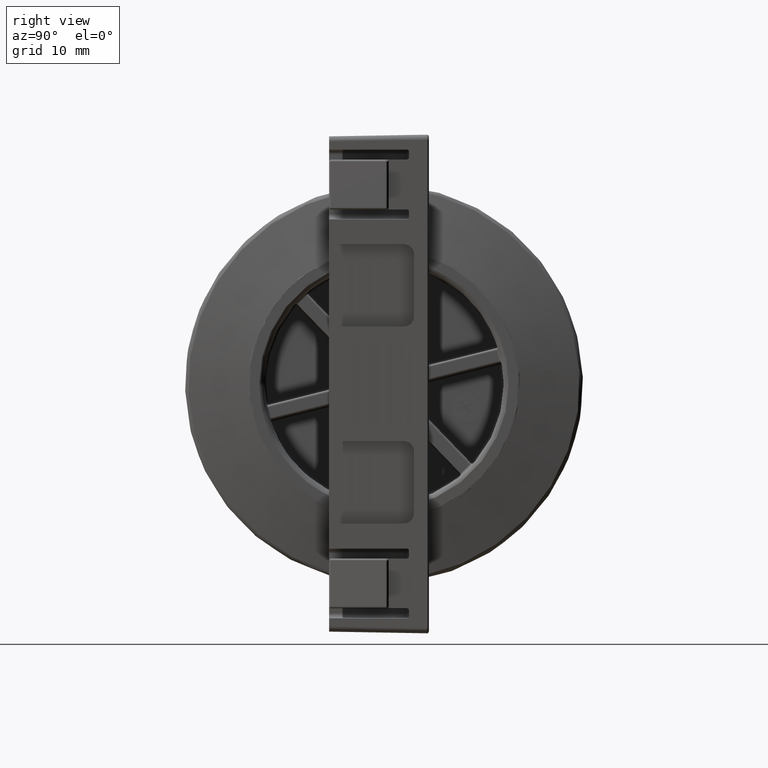
[diagram: clean part render]
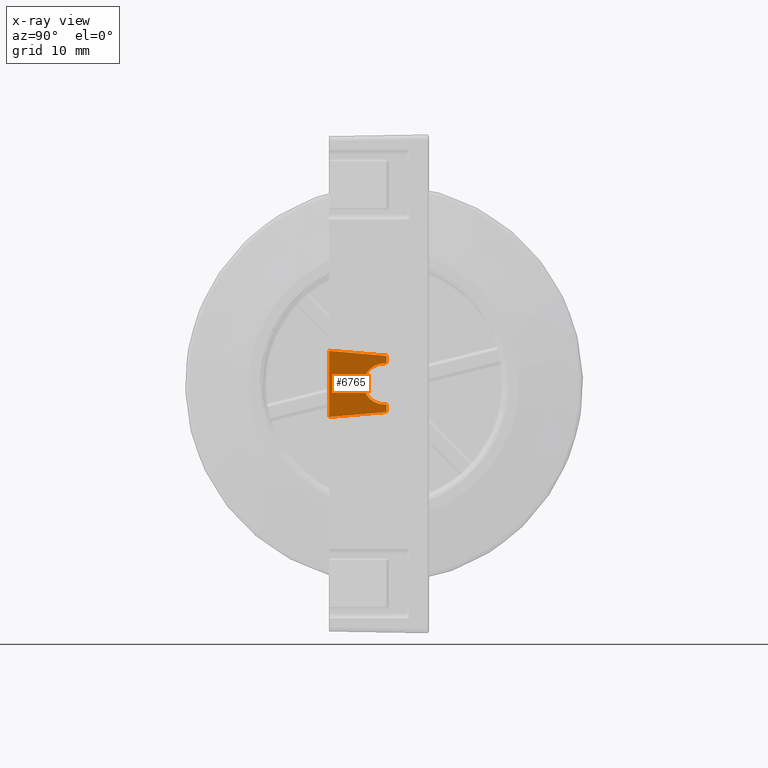
[diagram: x-ray — body ghosted, one internal face saturated and labeled with its STEP entity id]
A machine part, right view, then the same camera in x-ray: the body is ghosted and one INTERNAL B-rep face — a face not visible from any outside direction — is saturated and labeled: STEP entity #6765.
In plain terms, the highlighted planar face has unit normal (1, -0, 0).
Its self-contained STEP definition (entity closure, byte-faithful):
#333 = DIRECTION ( 'NONE',  ( 0.0000000000000000000, 0.9961946980917458800, 0.08715574274765418300 ) ) ;
#413 = VECTOR ( 'NONE', #7583, 1000.000000000000000 ) ;
#570 = VECTOR ( 'NONE', #4913, 1000.000000000000200 ) ;
#683 = CARTESIAN_POINT ( 'NONE',  ( 13.70000000000000100, -10.00000000000000200, 3.319793580470560300 ) ) ;
#767 = CARTESIAN_POINT ( 'NONE',  ( 13.70000000000000100, -10.00000000000000000, -3.319793580470561200 ) ) ;
#2767 = VERTEX_POINT ( 'NONE', #3378 ) ;
#2955 = LINE ( 'NONE', #3166, #413 ) ;
#3105 = FACE_OUTER_BOUND ( 'NONE', #24824, .T. ) ;
#3166 = CARTESIAN_POINT ( 'NONE',  ( 13.70000000000000100, -4.250000000000000000, 0.0000000000000000000 ) ) ;
#3212 = CARTESIAN_POINT ( 'NONE',  ( 13.70000000000000100, -4.500000000000000900, -1.626303258728260200E-015 ) ) ;
#3378 = CARTESIAN_POINT ( 'NONE',  ( 13.70000000000000100, -4.607469726728016500, -2.050644545490198500 ) ) ;
#3504 = DIRECTION ( 'NONE',  ( 1.000000000000000000, -0.0000000000000000000, -0.0000000000000000000 ) ) ;
#3836 = VERTEX_POINT ( 'NONE', #767 ) ;
#4232 = CARTESIAN_POINT ( 'NONE',  ( 13.70000000000000100, -4.250000000000000000, -2.816733765196520100 ) ) ;
#4333 = LINE ( 'NONE', #19178, #13775 ) ;
#4386 = LINE ( 'NONE', #23173, #12739 ) ;
#4637 = CARTESIAN_POINT ( 'NONE',  ( 13.70000000000000100, -4.250000000000000000, 2.816733765196509400 ) ) ;
#4913 = DIRECTION ( 'NONE',  ( 0.0000000000000000000, -0.9961946980917456600, 0.08715574274765590400 ) ) ;
#5118 = ORIENTED_EDGE ( 'NONE', *, *, #14765, .T. ) ;
#5540 = ORIENTED_EDGE ( 'NONE', *, *, #17906, .T. ) ;
#5678 = ORIENTED_EDGE ( 'NONE', *, *, #10037, .T. ) ;
#5840 = VECTOR ( 'NONE', #16372, 1000.000000000000200 ) ;
#6354 = ORIENTED_EDGE ( 'NONE', *, *, #14275, .F. ) ;
#6409 = EDGE_CURVE ( 'NONE', #16957, #18918, #19679, .T. ) ;
#6448 = PLANE ( 'NONE',  #26676 ) ;
#6765 = ADVANCED_FACE ( 'NONE', ( #3105 ), #6448, .F. ) ;
#6965 = VERTEX_POINT ( 'NONE', #25442 ) ;
#7012 = AXIS2_PLACEMENT_3D ( 'NONE', #3212, #3504, #19260 ) ;
#7583 = DIRECTION ( 'NONE',  ( -0.0000000000000000000, -0.0000000000000000000, -1.000000000000000000 ) ) ;
#8532 = EDGE_CURVE ( 'NONE', #26119, #6965, #11790, .T. ) ;
#8625 = CARTESIAN_POINT ( 'NONE',  ( 13.70000000000000100, -4.250000000000000000, -2.069378740028928300 ) ) ;
#8686 = DIRECTION ( 'NONE',  ( 0.0000000000000000000, 0.0000000000000000000, -1.000000000000000000 ) ) ;
#9195 = LINE ( 'NONE', #28260, #10251 ) ;
#9196 = CARTESIAN_POINT ( 'NONE',  ( 13.70000000000000100, -4.250000000000000000, 2.816733765196510800 ) ) ;
#9308 = DIRECTION ( 'NONE',  ( 0.0000000000000000000, -0.0000000000000000000, 1.000000000000000000 ) ) ;
#9537 = CARTESIAN_POINT ( 'NONE',  ( 13.70000000000000100, -10.00000000000000000, -3.319793580470559800 ) ) ;
#9610 = ORIENTED_EDGE ( 'NONE', *, *, #21603, .F. ) ;
#10037 = EDGE_CURVE ( 'NONE', #3836, #18918, #4386, .T. ) ;
#10251 = VECTOR ( 'NONE', #10273, 1000.000000000000000 ) ;
#10273 = DIRECTION ( 'NONE',  ( 0.0000000000000000000, -0.9986295347545739400, 0.05233595624294340400 ) ) ;
#10626 = LINE ( 'NONE', #9537, #20557 ) ;
#11740 = VERTEX_POINT ( 'NONE', #4232 ) ;
#11790 = LINE ( 'NONE', #28903, #5840 ) ;
#12465 = ORIENTED_EDGE ( 'NONE', *, *, #6409, .F. ) ;
#12739 = VECTOR ( 'NONE', #9308, 1000.000000000000000 ) ;
#13027 = EDGE_CURVE ( 'NONE', #16957, #6965, #2955, .T. ) ;
#13775 = VECTOR ( 'NONE', #14291, 1000.000000000000000 ) ;
#14275 = EDGE_CURVE ( 'NONE', #3836, #11740, #10626, .T. ) ;
#14291 = DIRECTION ( 'NONE',  ( -0.0000000000000000000, -0.0000000000000000000, -1.000000000000000000 ) ) ;
#14765 = EDGE_CURVE ( 'NONE', #29354, #11740, #4333, .T. ) ;
#16372 = DIRECTION ( 'NONE',  ( 0.0000000000000000000, 0.9986295347545739400, 0.05233595624294219000 ) ) ;
#16957 = VERTEX_POINT ( 'NONE', #9196 ) ;
#17906 = EDGE_CURVE ( 'NONE', #26119, #2767, #19348, .T. ) ;
#17948 = CARTESIAN_POINT ( 'NONE',  ( 13.70000000000000100, -4.099999999999999600, -3.000000000000000000 ) ) ;
#18885 = CARTESIAN_POINT ( 'NONE',  ( 13.70000000000000100, -4.607469726728015600, 2.050644545490199400 ) ) ;
#18918 = VERTEX_POINT ( 'NONE', #683 ) ;
#19178 = CARTESIAN_POINT ( 'NONE',  ( 13.70000000000000100, -4.250000000000000000, 0.0000000000000000000 ) ) ;
#19260 = DIRECTION ( 'NONE',  ( 0.0000000000000000000, 0.0000000000000000000, 1.000000000000000000 ) ) ;
#19348 = CIRCLE ( 'NONE', #7012, 2.053458739325360000 ) ;
#19679 = LINE ( 'NONE', #4637, #570 ) ;
#20557 = VECTOR ( 'NONE', #333, 1000.000000000000000 ) ;
#21603 = EDGE_CURVE ( 'NONE', #29354, #2767, #9195, .T. ) ;
#22434 = DIRECTION ( 'NONE',  ( 1.000000000000000000, -0.0000000000000000000, 0.0000000000000000000 ) ) ;
#23054 = ORIENTED_EDGE ( 'NONE', *, *, #13027, .T. ) ;
#23173 = CARTESIAN_POINT ( 'NONE',  ( 13.70000000000000100, -10.00000000000000000, 0.0000000000000000000 ) ) ;
#24824 = EDGE_LOOP ( 'NONE', ( #6354, #5678, #12465, #23054, #29036, #5540, #9610, #5118 ) ) ;
#25442 = CARTESIAN_POINT ( 'NONE',  ( 13.70000000000000100, -4.250000000000000000, 2.069378740028928700 ) ) ;
#26119 = VERTEX_POINT ( 'NONE', #18885 ) ;
#26676 = AXIS2_PLACEMENT_3D ( 'NONE', #17948, #22434, #8686 ) ;
#28260 = CARTESIAN_POINT ( 'NONE',  ( 13.70000000000000100, -4.250000000000000000, -2.069378740028930100 ) ) ;
#28903 = CARTESIAN_POINT ( 'NONE',  ( 13.70000000000000100, -4.607469726728010300, 2.050644545490199800 ) ) ;
#29036 = ORIENTED_EDGE ( 'NONE', *, *, #8532, .F. ) ;
#29354 = VERTEX_POINT ( 'NONE', #8625 ) ;